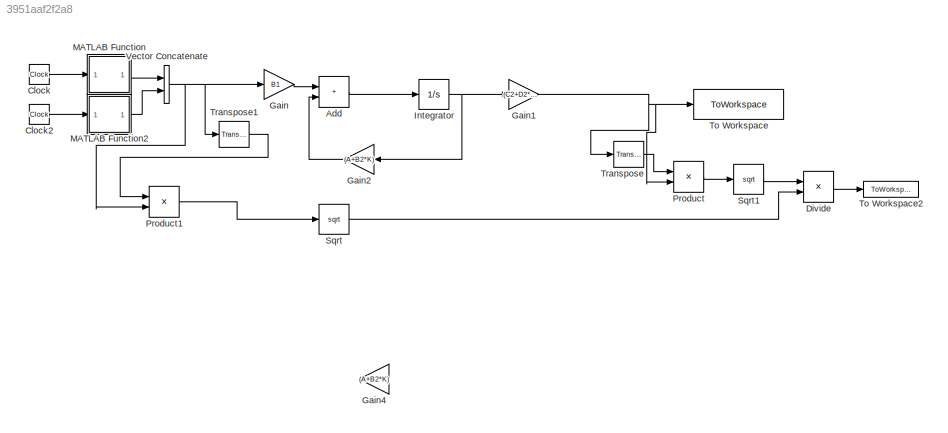
MODEL slx_3951aaf2f2a8
KIND model
CONFIG AbsTol = auto
CONFIG EnableMultiTasking = off
CONFIG FixedStep = auto
CONFIG MaxStep = auto
CONFIG MinStep = auto
CONFIG RelTol = 1e-3
CONFIG SampleTimeConstraint = Unconstrained
CONFIG SolverName = VariableStepAuto
CONFIG StartTime = 0.0
CONFIG StopTime = 10
BLOCK [Sum] Add
  IconShape = rectangular
  Ports = [2, 1]
BLOCK [Clock] Clock
BLOCK [Clock] Clock2
BLOCK [Product] Divide
  Inputs = */
  Ports = [2, 1]
BLOCK [Gain] Gain
  Gain = B1
  Multiplication = Matrix(K*u) (u vector)
BLOCK [Gain] Gain1
  Gain = (C2+D2*K)
  Multiplication = Matrix(K*u) (u vector)
BLOCK [Gain] Gain2
  Gain = (A+B2*K)
  Multiplication = Matrix(K*u) (u vector)
  NameLocation = top
BLOCK [Gain] Gain4
  Gain = (A+B2*K)
  Multiplication = Matrix(K*u) (u vector)
  NameLocation = top
BLOCK [Integrator] Integrator
  Ports = [1, 1]
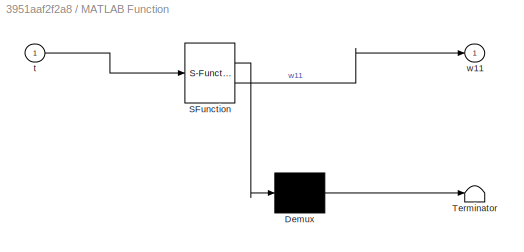
BLOCK [SubSystem] MATLAB Function
  ErrorFcn = Stateflow.Translate.translate
  PermitHierarchicalResolution = ExplicitOnly
  Ports = [1, 1]
  RequestExecContextInheritance = off
  SFBlockType = MATLAB Function
  TreatAsAtomicUnit = on
BLOCK [Demux] MATLAB Function/ Demux 
  Outputs = 1
  Ports = [1, 1]
BLOCK [S-Function] MATLAB Function/ SFunction 
  EnableBusSupport = on
  FunctionName = sf_sfun
  PortCounts = [1 2]
  Ports = [1, 2]
  SFcnIsStateOwnerBlock = off
  SFunctionDeploymentMode = off
  Tag = Stateflow S-Function 2
BLOCK [Terminator] MATLAB Function/ Terminator 
BLOCK [Inport] MATLAB Function/t
BLOCK [Outport] MATLAB Function/w11
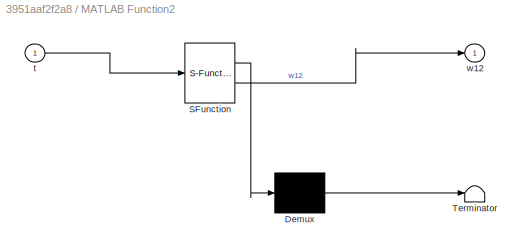
BLOCK [SubSystem] MATLAB Function2
  ErrorFcn = Stateflow.Translate.translate
  PermitHierarchicalResolution = ExplicitOnly
  Ports = [1, 1]
  RequestExecContextInheritance = off
  SFBlockType = MATLAB Function
  TreatAsAtomicUnit = on
BLOCK [Demux] MATLAB Function2/ Demux 
  Outputs = 1
  Ports = [1, 1]
BLOCK [S-Function] MATLAB Function2/ SFunction 
  EnableBusSupport = on
  FunctionName = sf_sfun
  PortCounts = [1 2]
  Ports = [1, 2]
  SFcnIsStateOwnerBlock = off
  SFunctionDeploymentMode = off
  Tag = Stateflow S-Function 3
BLOCK [Terminator] MATLAB Function2/ Terminator 
BLOCK [Inport] MATLAB Function2/t
BLOCK [Outport] MATLAB Function2/w12
BLOCK [Product] Product
  Multiplication = Matrix(*)
  Ports = [2, 1]
BLOCK [Product] Product1
  Multiplication = Matrix(*)
  Ports = [2, 1]
BLOCK [Sqrt] Sqrt
BLOCK [Sqrt] Sqrt1
BLOCK [ToWorkspace] To Workspace
  FixptAsFi = on
  MaxDataPoints = inf
  Ports = [1]
  SampleTime = 0.0001
  SaveFormat = Timeseries
  VariableName = z1
BLOCK [ToWorkspace] To Workspace2
  MaxDataPoints = inf
  Ports = [1]
  SampleTime = 0.0001
  SaveFormat = Timeseries
  VariableName = rel_norm
BLOCK [Reference] Transpose  REF=matrix_library/Transpose
  Ports = [1, 1]
  SourceBlock = matrix_library/Transpose
  SourceProductBaseCode = SL
  SourceType = Transpose
BLOCK [Reference] Transpose1  REF=matrix_library/Transpose
  Ports = [1, 1]
  SourceBlock = matrix_library/Transpose
  SourceProductBaseCode = SL
  SourceType = Transpose
BLOCK [Concatenate] Vector Concatenate
  Ports = [2, 1]
LINE Add:1 -> Integrator:1
LINE Clock2:1 -> MATLAB Function2:1
LINE Clock:1 -> MATLAB Function:1
LINE Divide:1 -> To Workspace2:1
NET Gain1:1 -> Product:2, To Workspace:1, Transpose:1
LINE Gain2:1 -> Add:2
LINE Gain:1 -> Add:1
NET Integrator:1 -> Gain1:1, Gain2:1
LINE MATLAB Function2:1 -> Vector Concatenate:2
LINE MATLAB Function:1 -> Vector Concatenate:1
LINE Product1:1 -> Sqrt:1
LINE Product:1 -> Sqrt1:1
LINE Sqrt1:1 -> Divide:1
LINE Sqrt:1 -> Divide:2
LINE Transpose1:1 -> Product1:1
LINE Transpose:1 -> Product:1
NET Vector Concatenate:1 -> Gain:1, Product1:2, Transpose1:1
note: NET lines group one-source signal fan-out (src -> all destinations, sorted); 1:1 wires keep LINE
CHART MATLAB Function2 states=1 transitions=1
  STATE_LABEL 'eML_blk_kernel()'
  STATE_LABEL 'SCRIPT:\nfunction w12 = fcn(t)\n\nw12 = 2*sin(t+pi/6);\n'
CHART MATLAB Function states=1 transitions=1
  STATE_LABEL 'eML_blk_kernel()'
  STATE_LABEL 'SCRIPT:\nfunction w11 = fcn(t)\n\nw11 = sin(t);\n'
CHART  states=0 transitions=0
CHART  states=0 transitions=0
